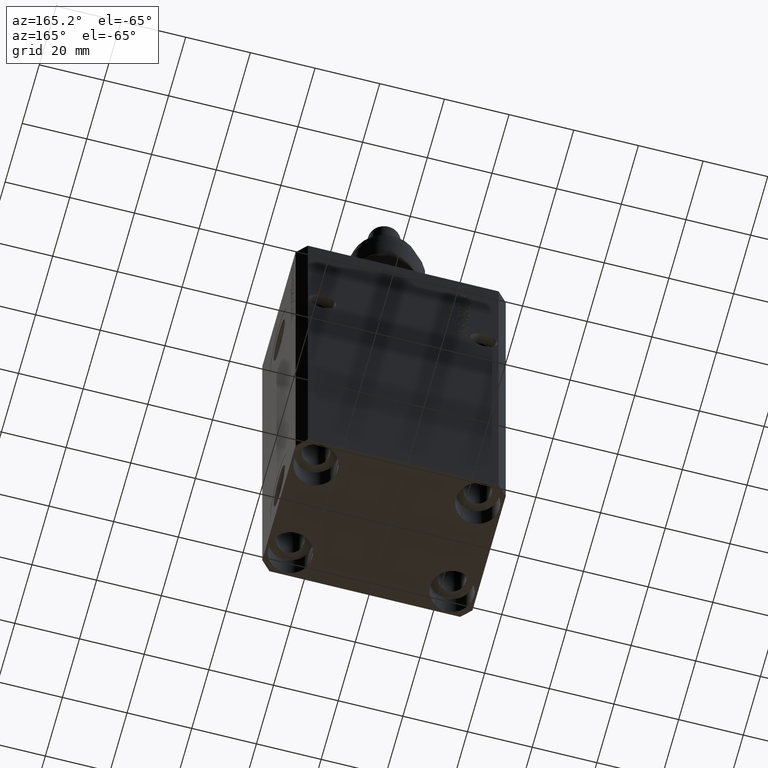
[diagram: clean part render]
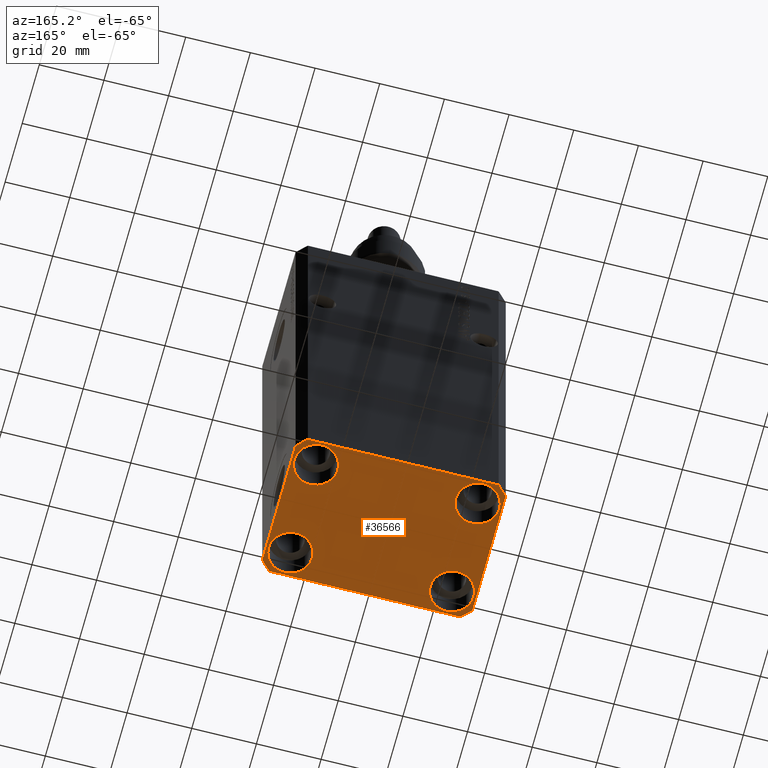
[diagram: same view with one face highlighted and labeled with its STEP entity id]
A machine part, auxiliary view. The second image highlights one B-rep face of the part: STEP entity #36566.
In plain terms, the highlighted planar face has unit normal (0, 0, 1).
Its self-contained STEP definition (entity closure, byte-faithful):
#151 = ORIENTED_EDGE ( 'NONE', *, *, #11926, .T. ) ;
#788 = VERTEX_POINT ( 'NONE', #39285 ) ;
#1034 = FACE_BOUND ( 'NONE', #25932, .T. ) ;
#1240 = EDGE_CURVE ( 'NONE', #18478, #18199, #8709, .T. ) ;
#1277 = ORIENTED_EDGE ( 'NONE', *, *, #19253, .F. ) ;
#1699 = DIRECTION ( 'NONE',  ( -0.000000000000000000, -0.000000000000000000, 1.000000000000000000 ) ) ;
#2091 = CARTESIAN_POINT ( 'NONE',  ( 32.49999999999702993, 19.49999999999945999, -137.0000000000000000 ) ) ;
#2343 = DIRECTION ( 'NONE',  ( -0.000000000000000000, -0.000000000000000000, 1.000000000000000000 ) ) ;
#2609 = AXIS2_PLACEMENT_3D ( 'NONE', #34054, #2343, #5983 ) ;
#2788 = VECTOR ( 'NONE', #47525, 1000.000000000000000 ) ;
#2961 = DIRECTION ( 'NONE',  ( -0.7071067811865474617, -0.7071067811865474617, 0.000000000000000000 ) ) ;
#3436 = VECTOR ( 'NONE', #47351, 1000.000000000000000 ) ;
#3847 = CIRCLE ( 'NONE', #30816, 6.750000000041541881 ) ;
#3972 = CARTESIAN_POINT ( 'NONE',  ( 29.49999999999707967, 22.49999999999951328, -137.0000000000000000 ) ) ;
#3983 = CARTESIAN_POINT ( 'NONE',  ( -29.49999999999650413, 22.49999999999949907, -137.0000000000000000 ) ) ;
#4182 = CARTESIAN_POINT ( 'NONE',  ( -31.75000000004154899, -15.00000000000000000, -137.0000000000000000 ) ) ;
#4234 = ORIENTED_EDGE ( 'NONE', *, *, #24676, .F. ) ;
#4305 = VERTEX_POINT ( 'NONE', #6055 ) ;
#4598 = DIRECTION ( 'NONE',  ( 0.7071067811865474617, -0.7071067811865474617, 0.000000000000000000 ) ) ;
#4823 = EDGE_CURVE ( 'NONE', #39272, #21155, #23554, .T. ) ;
#5239 = ORIENTED_EDGE ( 'NONE', *, *, #4823, .F. ) ;
#5723 = AXIS2_PLACEMENT_3D ( 'NONE', #20926, #31794, #28899 ) ;
#5793 = VERTEX_POINT ( 'NONE', #14787 ) ;
#5983 = DIRECTION ( 'NONE',  ( 1.000000000000000000, 0.000000000000000000, 0.000000000000000000 ) ) ;
#6018 = LINE ( 'NONE', #17837, #43248 ) ;
#6055 = CARTESIAN_POINT ( 'NONE',  ( -31.75000000002253842, 15.00000000000000000, -137.0000000000000000 ) ) ;
#7528 = CARTESIAN_POINT ( 'NONE',  ( 32.49999999999651124, -19.49999999999949196, -137.0000000000000000 ) ) ;
#7905 = CARTESIAN_POINT ( 'NONE',  ( -18.24999999997747224, 15.00000000000000000, -137.0000000000000000 ) ) ;
#8065 = CIRCLE ( 'NONE', #5723, 6.749999999958452790 ) ;
#8079 = DIRECTION ( 'NONE',  ( 0.000000000000000000, 0.000000000000000000, 1.000000000000000000 ) ) ;
#8478 = VECTOR ( 'NONE', #4598, 1000.000000000000114 ) ;
#8709 = LINE ( 'NONE', #16176, #8478 ) ;
#9590 = CIRCLE ( 'NONE', #27275, 6.750000000022533087 ) ;
#9931 = ORIENTED_EDGE ( 'NONE', *, *, #24919, .F. ) ;
#9957 = DIRECTION ( 'NONE',  ( -0.000000000000000000, -0.000000000000000000, 1.000000000000000000 ) ) ;
#10319 = DIRECTION ( 'NONE',  ( -0.7071067811865352493, 0.7071067811865597852, 0.000000000000000000 ) ) ;
#10722 = VERTEX_POINT ( 'NONE', #41088 ) ;
#11263 = CIRCLE ( 'NONE', #29760, 6.750000000041541881 ) ;
#11873 = AXIS2_PLACEMENT_3D ( 'NONE', #35833, #27869, #31970 ) ;
#11926 = EDGE_CURVE ( 'NONE', #5793, #10722, #8065, .T. ) ;
#11991 = DIRECTION ( 'NONE',  ( -0.000000000000000000, -0.000000000000000000, 1.000000000000000000 ) ) ;
#12037 = VERTEX_POINT ( 'NONE', #39526 ) ;
#13447 = ORIENTED_EDGE ( 'NONE', *, *, #22518, .T. ) ;
#13810 = EDGE_CURVE ( 'NONE', #32825, #12037, #20315, .T. ) ;
#14787 = CARTESIAN_POINT ( 'NONE',  ( 18.25000000004154543, 15.00000000000000888, -137.0000000000000000 ) ) ;
#15169 = EDGE_CURVE ( 'NONE', #12037, #32825, #24990, .T. ) ;
#15278 = AXIS2_PLACEMENT_3D ( 'NONE', #28758, #21735, #43483 ) ;
#15409 = AXIS2_PLACEMENT_3D ( 'NONE', #26650, #8079, #37752 ) ;
#15505 = EDGE_CURVE ( 'NONE', #45207, #4305, #9590, .T. ) ;
#15649 = CARTESIAN_POINT ( 'NONE',  ( -25.00000000000000355, -15.00000000000000000, -137.0000000000000000 ) ) ;
#16073 = CARTESIAN_POINT ( 'NONE',  ( 29.49999999999707967, 22.49999999999951328, -137.0000000000000000 ) ) ;
#16176 = CARTESIAN_POINT ( 'NONE',  ( -32.49999999999650413, -19.49999999999949907, -137.0000000000000000 ) ) ;
#17055 = ORIENTED_EDGE ( 'NONE', *, *, #38323, .F. ) ;
#17837 = CARTESIAN_POINT ( 'NONE',  ( 32.49999999999651124, -19.49999999999949196, -137.0000000000000000 ) ) ;
#17896 = EDGE_LOOP ( 'NONE', ( #36409, #29082 ) ) ;
#17926 = CARTESIAN_POINT ( 'NONE',  ( -29.49999999999650413, 22.49999999999949907, -137.0000000000000000 ) ) ;
#18199 = VERTEX_POINT ( 'NONE', #45892 ) ;
#18478 = VERTEX_POINT ( 'NONE', #18595 ) ;
#18595 = CARTESIAN_POINT ( 'NONE',  ( -32.49999999999650413, -19.49999999999949907, -137.0000000000000000 ) ) ;
#19126 = ORIENTED_EDGE ( 'NONE', *, *, #32196, .T. ) ;
#19253 = EDGE_CURVE ( 'NONE', #788, #18478, #39632, .T. ) ;
#19398 = FACE_BOUND ( 'NONE', #42885, .T. ) ;
#19660 = ORIENTED_EDGE ( 'NONE', *, *, #46339, .T. ) ;
#19702 = DIRECTION ( 'NONE',  ( 1.000000000000000000, 0.000000000000000000, 0.000000000000000000 ) ) ;
#19754 = VECTOR ( 'NONE', #10319, 1000.000000000000000 ) ;
#19901 = CARTESIAN_POINT ( 'NONE',  ( -18.24999999995845812, -15.00000000000000000, -137.0000000000000000 ) ) ;
#20053 = DIRECTION ( 'NONE',  ( 1.000000000000000000, 0.000000000000000000, 0.000000000000000000 ) ) ;
#20315 = CIRCLE ( 'NONE', #2609, 6.749999999977465137 ) ;
#20926 = CARTESIAN_POINT ( 'NONE',  ( 24.99999999999999645, 15.00000000000000888, -137.0000000000000000 ) ) ;
#21155 = VERTEX_POINT ( 'NONE', #3983 ) ;
#21735 = DIRECTION ( 'NONE',  ( -0.000000000000000000, -0.000000000000000000, 1.000000000000000000 ) ) ;
#22083 = ORIENTED_EDGE ( 'NONE', *, *, #46902, .F. ) ;
#22518 = EDGE_CURVE ( 'NONE', #33248, #28015, #11263, .T. ) ;
#23085 = CARTESIAN_POINT ( 'NONE',  ( -25.00000000000000355, 15.00000000000000000, -137.0000000000000000 ) ) ;
#23554 = LINE ( 'NONE', #16073, #38624 ) ;
#23946 = LINE ( 'NONE', #35538, #36767 ) ;
#24676 = EDGE_CURVE ( 'NONE', #42593, #39272, #36137, .T. ) ;
#24919 = EDGE_CURVE ( 'NONE', #18199, #41927, #23946, .T. ) ;
#24990 = CIRCLE ( 'NONE', #11873, 6.749999999977465137 ) ;
#25932 = EDGE_LOOP ( 'NONE', ( #151, #19126 ) ) ;
#26650 = CARTESIAN_POINT ( 'NONE',  ( 0.000000000000000000, 0.000000000000000000, -137.0000000000000000 ) ) ;
#27275 = AXIS2_PLACEMENT_3D ( 'NONE', #43020, #9957, #40348 ) ;
#27741 = CARTESIAN_POINT ( 'NONE',  ( 32.49999999999702993, 19.49999999999945999, -137.0000000000000000 ) ) ;
#27869 = DIRECTION ( 'NONE',  ( -0.000000000000000000, -0.000000000000000000, 1.000000000000000000 ) ) ;
#28015 = VERTEX_POINT ( 'NONE', #4182 ) ;
#28758 = CARTESIAN_POINT ( 'NONE',  ( 24.99999999999999645, 15.00000000000000888, -137.0000000000000000 ) ) ;
#28899 = DIRECTION ( 'NONE',  ( 1.000000000000000000, 0.000000000000000000, 0.000000000000000000 ) ) ;
#29082 = ORIENTED_EDGE ( 'NONE', *, *, #15169, .T. ) ;
#29350 = VERTEX_POINT ( 'NONE', #7528 ) ;
#29760 = AXIS2_PLACEMENT_3D ( 'NONE', #15649, #42200, #30377 ) ;
#29764 = AXIS2_PLACEMENT_3D ( 'NONE', #23085, #11991, #19702 ) ;
#30377 = DIRECTION ( 'NONE',  ( 1.000000000000000000, 0.000000000000000000, 0.000000000000000000 ) ) ;
#30797 = DIRECTION ( 'NONE',  ( -1.000000000000000000, -2.352167425053553784E-16, 0.000000000000000000 ) ) ;
#30816 = AXIS2_PLACEMENT_3D ( 'NONE', #34784, #1699, #20053 ) ;
#30975 = VECTOR ( 'NONE', #2961, 1000.000000000000114 ) ;
#31794 = DIRECTION ( 'NONE',  ( -0.000000000000000000, -0.000000000000000000, 1.000000000000000000 ) ) ;
#31970 = DIRECTION ( 'NONE',  ( 1.000000000000000000, 0.000000000000000000, 0.000000000000000000 ) ) ;
#32077 = CARTESIAN_POINT ( 'NONE',  ( 29.49999999999650413, -22.49999999999949196, -137.0000000000000000 ) ) ;
#32084 = DIRECTION ( 'NONE',  ( 1.334402673828349134E-14, 1.000000000000000000, 0.000000000000000000 ) ) ;
#32147 = CARTESIAN_POINT ( 'NONE',  ( -32.49999999999650413, 19.49999999999949907, -137.0000000000000000 ) ) ;
#32196 = EDGE_CURVE ( 'NONE', #10722, #5793, #35307, .T. ) ;
#32825 = VERTEX_POINT ( 'NONE', #36832 ) ;
#33248 = VERTEX_POINT ( 'NONE', #19901 ) ;
#33429 = FACE_OUTER_BOUND ( 'NONE', #44909, .T. ) ;
#33895 = FACE_BOUND ( 'NONE', #37584, .T. ) ;
#34054 = CARTESIAN_POINT ( 'NONE',  ( 25.00000000000000355, -15.00000000000000000, -137.0000000000000000 ) ) ;
#34129 = PLANE ( 'NONE',  #15409 ) ;
#34286 = ORIENTED_EDGE ( 'NONE', *, *, #15505, .T. ) ;
#34380 = ORIENTED_EDGE ( 'NONE', *, *, #44490, .F. ) ;
#34784 = CARTESIAN_POINT ( 'NONE',  ( -25.00000000000000355, -15.00000000000000000, -137.0000000000000000 ) ) ;
#35307 = CIRCLE ( 'NONE', #15278, 6.749999999958452790 ) ;
#35538 = CARTESIAN_POINT ( 'NONE',  ( -29.49999999999650413, -22.49999999999949907, -137.0000000000000000 ) ) ;
#35833 = CARTESIAN_POINT ( 'NONE',  ( 25.00000000000000355, -15.00000000000000000, -137.0000000000000000 ) ) ;
#36137 = LINE ( 'NONE', #27741, #19754 ) ;
#36409 = ORIENTED_EDGE ( 'NONE', *, *, #13810, .T. ) ;
#36450 = CIRCLE ( 'NONE', #29764, 6.750000000022533087 ) ;
#36566 = ADVANCED_FACE ( 'NONE', ( #33895, #44300, #1034, #19398, #33429 ), #34129, .F. ) ;
#36767 = VECTOR ( 'NONE', #42062, 1000.000000000000000 ) ;
#36832 = CARTESIAN_POINT ( 'NONE',  ( 18.25000000002253842, -15.00000000000000000, -137.0000000000000000 ) ) ;
#36975 = EDGE_CURVE ( 'NONE', #28015, #33248, #3847, .T. ) ;
#37584 = EDGE_LOOP ( 'NONE', ( #41161, #13447 ) ) ;
#37752 = DIRECTION ( 'NONE',  ( 1.000000000000000000, 0.000000000000000000, -0.000000000000000000 ) ) ;
#38323 = EDGE_CURVE ( 'NONE', #29350, #42593, #6018, .T. ) ;
#38624 = VECTOR ( 'NONE', #30797, 1000.000000000000000 ) ;
#39272 = VERTEX_POINT ( 'NONE', #3972 ) ;
#39285 = CARTESIAN_POINT ( 'NONE',  ( -32.49999999999650413, 19.49999999999949907, -137.0000000000000000 ) ) ;
#39416 = LINE ( 'NONE', #17926, #30975 ) ;
#39526 = CARTESIAN_POINT ( 'NONE',  ( 31.74999999997746869, -15.00000000000000000, -137.0000000000000000 ) ) ;
#39632 = LINE ( 'NONE', #32147, #3436 ) ;
#40047 = LINE ( 'NONE', #32077, #2788 ) ;
#40296 = ORIENTED_EDGE ( 'NONE', *, *, #1240, .F. ) ;
#40348 = DIRECTION ( 'NONE',  ( 1.000000000000000000, 0.000000000000000000, 0.000000000000000000 ) ) ;
#40932 = CARTESIAN_POINT ( 'NONE',  ( 29.49999999999650413, -22.49999999999949196, -137.0000000000000000 ) ) ;
#41088 = CARTESIAN_POINT ( 'NONE',  ( 31.74999999995845101, 15.00000000000000888, -137.0000000000000000 ) ) ;
#41161 = ORIENTED_EDGE ( 'NONE', *, *, #36975, .T. ) ;
#41927 = VERTEX_POINT ( 'NONE', #40932 ) ;
#42062 = DIRECTION ( 'NONE',  ( 1.000000000000000000, 1.176083712526788232E-16, 0.000000000000000000 ) ) ;
#42200 = DIRECTION ( 'NONE',  ( -0.000000000000000000, -0.000000000000000000, 1.000000000000000000 ) ) ;
#42593 = VERTEX_POINT ( 'NONE', #2091 ) ;
#42885 = EDGE_LOOP ( 'NONE', ( #19660, #34286 ) ) ;
#43020 = CARTESIAN_POINT ( 'NONE',  ( -25.00000000000000355, 15.00000000000000000, -137.0000000000000000 ) ) ;
#43248 = VECTOR ( 'NONE', #32084, 1000.000000000000000 ) ;
#43483 = DIRECTION ( 'NONE',  ( 1.000000000000000000, 0.000000000000000000, 0.000000000000000000 ) ) ;
#44300 = FACE_BOUND ( 'NONE', #17896, .T. ) ;
#44490 = EDGE_CURVE ( 'NONE', #21155, #788, #39416, .T. ) ;
#44909 = EDGE_LOOP ( 'NONE', ( #5239, #4234, #17055, #22083, #9931, #40296, #1277, #34380 ) ) ;
#45207 = VERTEX_POINT ( 'NONE', #7905 ) ;
#45892 = CARTESIAN_POINT ( 'NONE',  ( -29.49999999999650413, -22.49999999999949907, -137.0000000000000000 ) ) ;
#46339 = EDGE_CURVE ( 'NONE', #4305, #45207, #36450, .T. ) ;
#46902 = EDGE_CURVE ( 'NONE', #41927, #29350, #40047, .T. ) ;
#47351 = DIRECTION ( 'NONE',  ( 0.000000000000000000, -1.000000000000000000, 0.000000000000000000 ) ) ;
#47525 = DIRECTION ( 'NONE',  ( 0.7071067811865483499, 0.7071067811865466846, 0.000000000000000000 ) ) ;